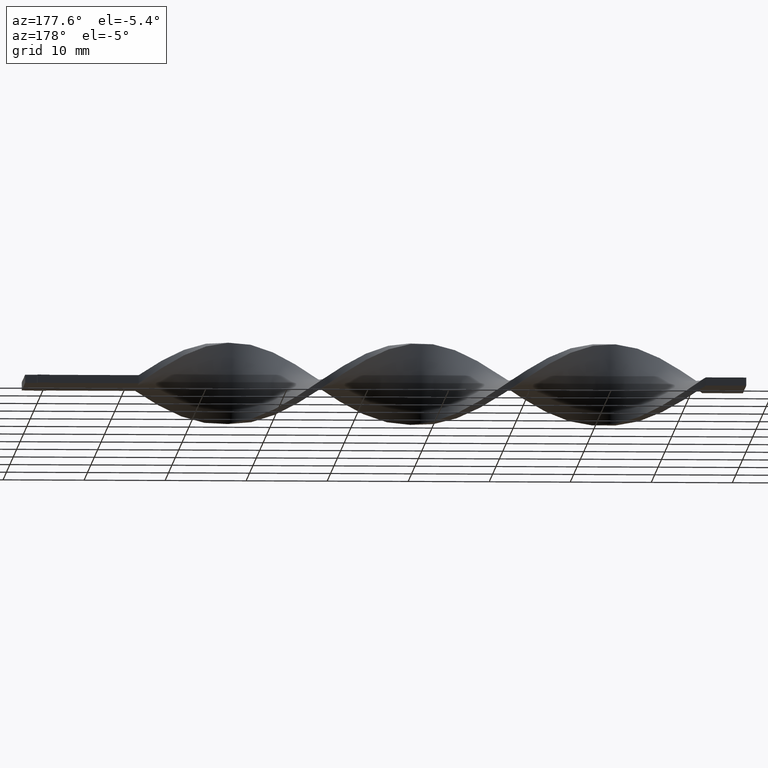
[diagram: clean part render]
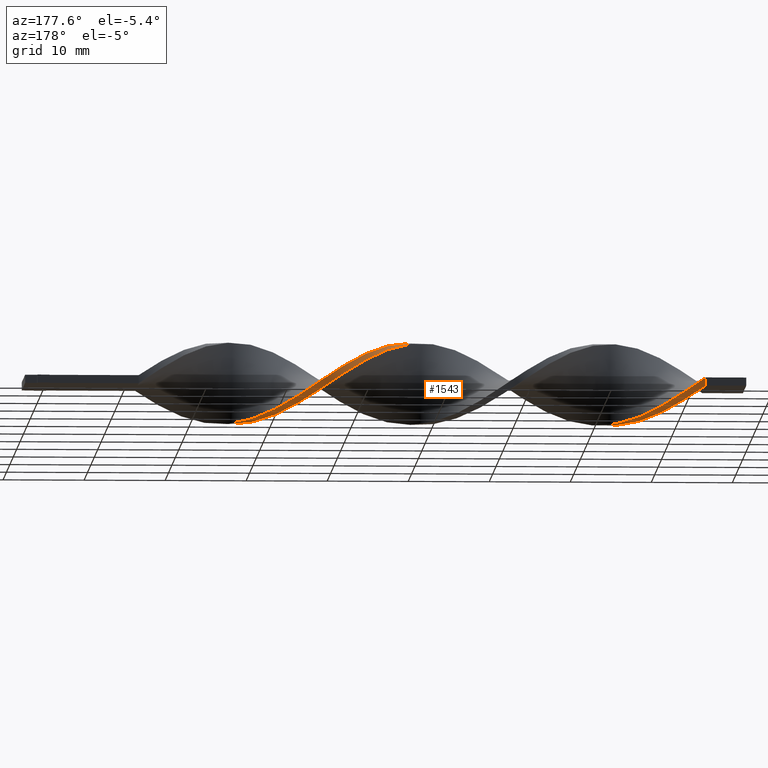
[diagram: same view with one face highlighted and labeled with its STEP entity id]
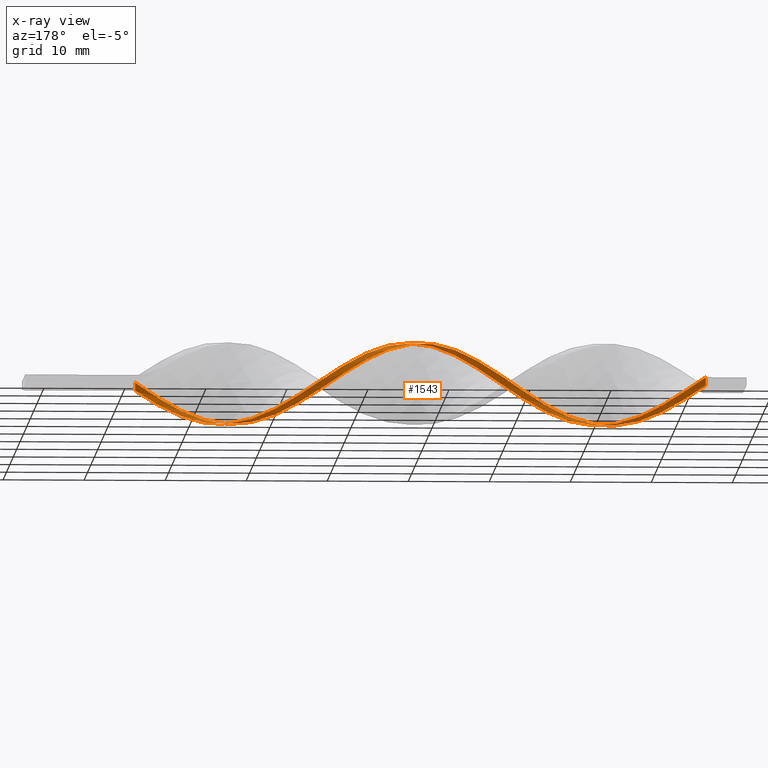
[diagram: x-ray of the same camera — body ghosted, the highlighted face saturated]
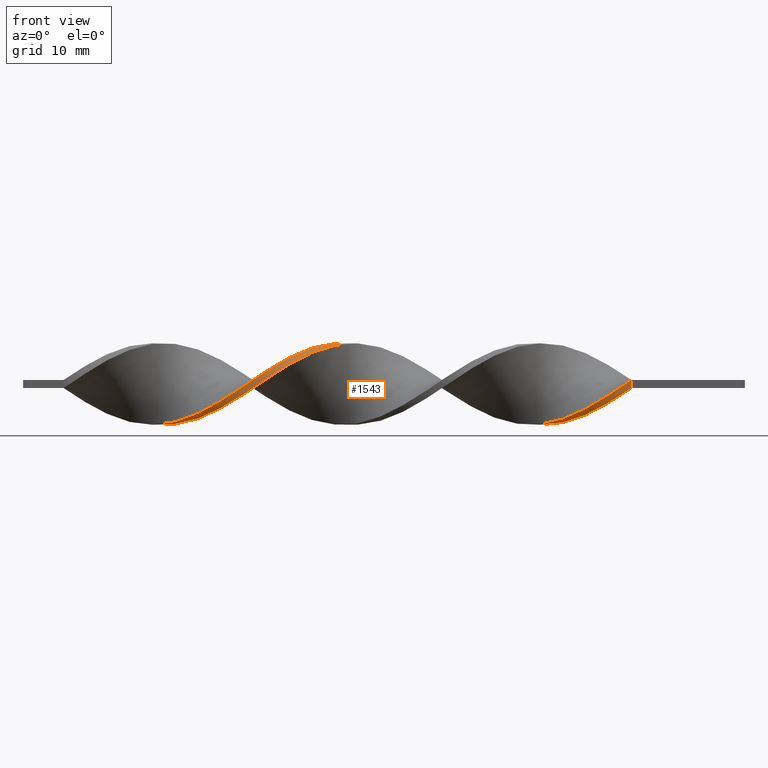
[diagram: same view with one face highlighted and labeled with its STEP entity id]
A machine part, auxiliary view. The second image highlights one B-rep face of the part: STEP entity #1543.
The next image is the same camera in x-ray: the body ghosted, the highlighted face saturated — about 2% of this face is hidden behind the body in this view.
A second angle (front view) of the same face is appended — the face is thin or edge-on in the first view.
In plain terms, the highlighted face is a freeform B-spline surface patch.
Its self-contained STEP definition (entity closure, byte-faithful):
#3 = CARTESIAN_POINT ( 'NONE',  ( -23.87179487179487580, -1.694403338218445576, -4.769828676396802081 ) ) ;
#9 = CARTESIAN_POINT ( 'NONE',  ( -27.46153846153846345, 0.7163302668880149326, -5.010902036907446622 ) ) ;
#13 = VERTEX_POINT ( 'NONE', #1213 ) ;
#15 = CARTESIAN_POINT ( 'NONE',  ( -62.46153846153845990, -4.974366919274039844, -0.7111074127247621890 ) ) ;
#29 = CARTESIAN_POINT ( 'NONE',  ( -19.38461538461538325, -3.410992411735109364, -3.689868665289524952 ) ) ;
#32 = CARTESIAN_POINT ( 'NONE',  ( -80.41025641025640880, 4.194918542244161053, -2.766343873045447488 ) ) ;
#39 = CARTESIAN_POINT ( 'NONE',  ( -63.35897435897435770, -4.888022846936949328, -1.315104909338221884 ) ) ;
#41 = CARTESIAN_POINT ( 'NONE',  ( -22.97435897435897090, -2.240532556555387966, -4.497778769905804275 ) ) ;
#43 = CARTESIAN_POINT ( 'NONE',  ( -25.66666666666666785, 0.5036723384328388731, -5.036723384328412934 ) ) ;
#51 = CARTESIAN_POINT ( 'NONE',  ( -39.12820512820512420, 4.735051254986477609, 1.682049230150812758 ) ) ;
#59 = CARTESIAN_POINT ( 'NONE',  ( -82.20512820512820440, 4.735051254986476721, -1.682049230150816088 ) ) ;
#66 = CARTESIAN_POINT ( 'NONE',  ( -28.35897435897435770, 2.240532556555381749, -4.497778769905805163 ) ) ;
#67 = VERTEX_POINT ( 'NONE', #1203 ) ;
#68 = CARTESIAN_POINT ( 'NONE',  ( -70.53846153846153300, -0.7163302668880202617, -5.010902036907447510 ) ) ;
#75 = CARTESIAN_POINT ( 'NONE',  ( -51.69230769230769340, -2.240532556555387078, 4.497778769905804275 ) ) ;
#77 = CARTESIAN_POINT ( 'NONE',  ( -54.38461538461538680, -3.716969558312885002, 3.436045048790600465 ) ) ;
#85 = CARTESIAN_POINT ( 'NONE',  ( -34.64102564102564230, 4.888022846936943111, -1.315104909338223660 ) ) ;
#97 = CARTESIAN_POINT ( 'NONE',  ( -24.76923076923076650, -1.099037838325645167, -4.903276030362606619 ) ) ;
#100 = CARTESIAN_POINT ( 'NONE',  ( -51.69230769230769340, -2.240532556555387078, 4.497778769905804275 ) ) ;
#106 = CARTESIAN_POINT ( 'NONE',  ( -78.61538461538461320, 4.074115069975897896, -2.941357917118425647 ) ) ;
#111 = CARTESIAN_POINT ( 'NONE',  ( -13.99999999999999645, -5.000000000000000888, 0.5000000000000000000 ) ) ;
#117 = CARTESIAN_POINT ( 'NONE',  ( -33.74358974358974450, 4.194918542244161053, -2.766343873045447488 ) ) ;
#120 = CARTESIAN_POINT ( 'NONE',  ( -48.10256410256410220, 1.099037838325642280, 4.903276030362606619 ) ) ;
#121 = EDGE_CURVE ( 'NONE', #13, #1347, #603, .T. ) ;
#122 = EDGE_LOOP ( 'NONE', ( #1204, #1178, #365, #1091 ) ) ;
#124 =( BOUNDED_SURFACE ( )  B_SPLINE_SURFACE ( 1, 2, ( 
 ( #816, #202, #1309, #936, #456, #1177, #1051, #1412, #1554, #1284, #1199, #945, #184, #927, #571, #1302, #66, #288, #174, #192, #696, #914, #1289, #85, #786, #1538, #562, #1169, #51, #294, #180, #670, #431, #919, #1191, #1417, #303, #799, #1297, #678, #1545, #438, #75, #1423, #448, #126, #1588, #377, #1356, #862, #495, #1617, #711, #608, #956, #615, #828, #739, #503, #1340, #488, #1112, #855, #1228, #622, #1322, #1349, #249, #467, #348, #1482, #1119, #106, #721, #134, #209, #986, #1443, #591 ),
 ( #338, #836, #1609, #703, #1243, #1209, #1472, #368, #479, #1218, #1106, #599, #97, #1082, #231, #966, #1453, #1599, #1574, #1463, #1329, #220, #117, #1095, #359, #845, #978, #732, #240, #1236, #755, #514, #159, #266, #146, #1269, #631, #1156, #1129, #760, #1142, #1495, #407, #402, #273, #1370, #532, #870, #1362, #1013, #1004, #999, #392, #165, #15, #39, #1255, #1503, #279, #1263, #1510, #152, #1388, #767, #1395, #995, #636, #892, #649, #256, #1487, #384, #877, #1150, #32, #774, #746, #509, #396 ) ),
 .UNSPECIFIED., .F., .F., .F. ) 
 B_SPLINE_SURFACE_WITH_KNOTS ( ( 2, 2 ),
 ( 3, 2, 2, 2, 2, 2, 2, 2, 2, 2, 2, 2, 2, 2, 2, 2, 2, 2, 2, 2, 2, 2, 2, 2, 2, 2, 2, 2, 2, 2, 2, 2, 2, 2, 2, 2, 2, 2, 2, 3 ),
 ( 0.000000000000000000, 1.000000000000000000 ),
 ( 0.000000000000000000, 0.01923076923076923184, 0.03846153846153846367, 0.05769230769230769551, 0.07692307692307692735, 0.09615384615384615918, 0.1153846153846153910, 0.1346153846153846090, 0.1538461538461538547, 0.1730769230769230727, 0.1923076923076923184, 0.2115384615384615363, 0.2307692307692307820, 0.2500000000000000000, 0.2692307692307692180, 0.2884615384615384359, 0.3076923076923077094, 0.3269230769230769273, 0.3461538461538461453, 0.3653846153846153633, 0.3846153846153846367, 0.4038461538461538547, 0.4230769230769230727, 0.4423076923076922906, 0.4615384615384615641, 0.4807692307692307820, 0.5000000000000000000, 0.5192307692307692735, 0.5384615384615384359, 0.5576923076923077094, 0.5769230769230768718, 0.5961538461538461453, 0.6153846153846154188, 0.6346153846153845812, 0.6538461538461538547, 0.6730769230769231282, 0.6923076923076922906, 0.7115384615384615641, 0.7307692307692307265, 0.7500000000000000000 ),
 .UNSPECIFIED. ) 
 GEOMETRIC_REPRESENTATION_ITEM ( )  RATIONAL_B_SPLINE_SURFACE ( (
 ( 1.000000000000000000, 0.9927088740980539727, 1.000000000000000000, 0.9927088740980539727, 1.000000000000000000, 0.9927088740980539727, 1.000000000000000000, 0.9927088740980539727, 1.000000000000000000, 0.9927088740980539727, 1.000000000000000000, 0.9927088740980539727, 1.000000000000000000, 0.9927088740980539727, 1.000000000000000000, 0.9927088740980539727, 1.000000000000000000, 0.9927088740980539727, 1.000000000000000000, 0.9927088740980539727, 1.000000000000000000, 0.9927088740980539727, 1.000000000000000000, 0.9927088740980539727, 1.000000000000000000, 0.9927088740980539727, 1.000000000000000000, 0.9927088740980539727, 1.000000000000000000, 0.9927088740980539727, 1.000000000000000000, 0.9927088740980539727, 1.000000000000000000, 0.9927088740980539727, 1.000000000000000000, 0.9927088740980539727, 1.000000000000000000, 0.9927088740980539727, 1.000000000000000000, 0.9927088740980539727, 1.000000000000000000, 0.9927088740980539727, 1.000000000000000000, 0.9927088740980539727, 1.000000000000000000, 0.9927088740980539727, 1.000000000000000000, 0.9927088740980539727, 1.000000000000000000, 0.9927088740980539727, 1.000000000000000000, 0.9927088740980539727, 1.000000000000000000, 0.9927088740980539727, 1.000000000000000000, 0.9927088740980539727, 1.000000000000000000, 0.9927088740980539727, 1.000000000000000000, 0.9927088740980539727, 1.000000000000000000, 0.9927088740980539727, 1.000000000000000000, 0.9927088740980539727, 1.000000000000000000, 0.9927088740980539727, 1.000000000000000000, 0.9927088740980539727, 1.000000000000000000, 0.9927088740980539727, 1.000000000000000000, 0.9927088740980539727, 1.000000000000000000, 0.9927088740980539727, 1.000000000000000000, 0.9927088740980539727, 1.000000000000000000, 0.9927088740980539727, 1.000000000000000000),
 ( 1.000000000000000000, 0.9927088740980539727, 1.000000000000000000, 0.9927088740980539727, 1.000000000000000000, 0.9927088740980539727, 1.000000000000000000, 0.9927088740980539727, 1.000000000000000000, 0.9927088740980539727, 1.000000000000000000, 0.9927088740980539727, 1.000000000000000000, 0.9927088740980539727, 1.000000000000000000, 0.9927088740980539727, 1.000000000000000000, 0.9927088740980539727, 1.000000000000000000, 0.9927088740980539727, 1.000000000000000000, 0.9927088740980539727, 1.000000000000000000, 0.9927088740980539727, 1.000000000000000000, 0.9927088740980539727, 1.000000000000000000, 0.9927088740980539727, 1.000000000000000000, 0.9927088740980539727, 1.000000000000000000, 0.9927088740980539727, 1.000000000000000000, 0.9927088740980539727, 1.000000000000000000, 0.9927088740980539727, 1.000000000000000000, 0.9927088740980539727, 1.000000000000000000, 0.9927088740980539727, 1.000000000000000000, 0.9927088740980539727, 1.000000000000000000, 0.9927088740980539727, 1.000000000000000000, 0.9927088740980539727, 1.000000000000000000, 0.9927088740980539727, 1.000000000000000000, 0.9927088740980539727, 1.000000000000000000, 0.9927088740980539727, 1.000000000000000000, 0.9927088740980539727, 1.000000000000000000, 0.9927088740980539727, 1.000000000000000000, 0.9927088740980539727, 1.000000000000000000, 0.9927088740980539727, 1.000000000000000000, 0.9927088740980539727, 1.000000000000000000, 0.9927088740980539727, 1.000000000000000000, 0.9927088740980539727, 1.000000000000000000, 0.9927088740980539727, 1.000000000000000000, 0.9927088740980539727, 1.000000000000000000, 0.9927088740980539727, 1.000000000000000000, 0.9927088740980539727, 1.000000000000000000, 0.9927088740980539727, 1.000000000000000000, 0.9927088740980539727, 1.000000000000000000) ) ) 
 REPRESENTATION_ITEM ( '' )  SURFACE ( )  );
#126 = CARTESIAN_POINT ( 'NONE',  ( -54.38461538461538680, -3.716969558312885002, 3.436045048790600465 ) ) ;
#129 = CARTESIAN_POINT ( 'NONE',  ( -40.92307692307691980, 4.659641714287929837, 1.880887847392236800 ) ) ;
#134 = CARTESIAN_POINT ( 'NONE',  ( -80.41025641025640880, 4.659641714287928949, -1.880887847392237688 ) ) ;
#137 = CARTESIAN_POINT ( 'NONE',  ( -38.23076923076922640, 5.060710991611125920, 0.1071099161113012732 ) ) ;
#141 = CARTESIAN_POINT ( 'NONE',  ( -31.05128205128205465, 2.962961240565973320, -4.104038128678484831 ) ) ;
#146 = CARTESIAN_POINT ( 'NONE',  ( -44.51282051282051100, 3.251815666602604349, 3.830886956102702356 ) ) ;
#152 = CARTESIAN_POINT ( 'NONE',  ( -68.74358974358973740, -2.786661774892329912, -4.225728863414808245 ) ) ;
#159 = CARTESIAN_POINT ( 'NONE',  ( -42.71794871794872250, 4.074115069975900560, 2.941357917118423426 ) ) ;
#165 = CARTESIAN_POINT ( 'NONE',  ( -61.56410256410256920, -5.060710991611132137, -0.1071099161113024806 ) ) ;
#166 = CARTESIAN_POINT ( 'NONE',  ( -64.25641025641024839, -4.659641714287935166, -1.880887847392236800 ) ) ;
#168 = CARTESIAN_POINT ( 'NONE',  ( -15.79487179487179205, -4.735051254986482050, -1.682049230150814312 ) ) ;
#174 = CARTESIAN_POINT ( 'NONE',  ( -30.15384615384615330, 3.251815666602603461, -3.830886956102702356 ) ) ;
#175 = CARTESIAN_POINT ( 'NONE',  ( -23.87179487179487580, -0.7163302668880202617, -5.010902036907447510 ) ) ;
#180 = CARTESIAN_POINT ( 'NONE',  ( -40.92307692307691980, 4.194918542244161941, 2.766343873045446600 ) ) ;
#184 = CARTESIAN_POINT ( 'NONE',  ( -24.76923076923076650, -0.1063289642275912633, -5.023812710617930222 ) ) ;
#192 = CARTESIAN_POINT ( 'NONE',  ( -31.05128205128205821, 3.716969558312881450, -3.436045048790598244 ) ) ;
#194 = CARTESIAN_POINT ( 'NONE',  ( -42.71794871794872250, 3.410992411735105367, 3.689868665289524508 ) ) ;
#202 = CARTESIAN_POINT ( 'NONE',  ( -14.89743589743589602, -4.939289008388870528, -1.107109916111302717 ) ) ;
#206 = CARTESIAN_POINT ( 'NONE',  ( -56.17948717948717530, -4.431260581638920115, 2.446670785446252605 ) ) ;
#209 = CARTESIAN_POINT ( 'NONE',  ( -81.30769230769233502, 4.888022846936943111, -1.315104909338223660 ) ) ;
#213 = CARTESIAN_POINT ( 'NONE',  ( -71.43589743589743080, -0.1063289642275912633, -5.023812710617930222 ) ) ;
#220 = CARTESIAN_POINT ( 'NONE',  ( -32.84615384615384670, 3.859023582904233418, -3.275699201900567736 ) ) ;
#225 = CARTESIAN_POINT ( 'NONE',  ( -38.23076923076922640, 4.939289008388865199, 1.107109916111301162 ) ) ;
#231 = CARTESIAN_POINT ( 'NONE',  ( -26.56410256410256210, 0.1063289642275847546, -5.023812710617930222 ) ) ;
#234 = CARTESIAN_POINT ( 'NONE',  ( -47.20512820512820440, 0.7163302668880151547, 5.010902036907446622 ) ) ;
#240 = CARTESIAN_POINT ( 'NONE',  ( -39.12820512820512420, 4.974366919274035403, 0.7111074127247607457 ) ) ;
#243 = CARTESIAN_POINT ( 'NONE',  ( -72.33333333333332860, -0.5036723384328442021, -5.036723384328412934 ) ) ;
#249 = CARTESIAN_POINT ( 'NONE',  ( -74.12820512820512420, 1.694403338218440247, -4.769828676396802969 ) ) ;
#251 = CARTESIAN_POINT ( 'NONE',  ( -22.07692307692308020, -2.786661774892330357, -4.225728863414808245 ) ) ;
#256 = CARTESIAN_POINT ( 'NONE',  ( -75.92307692307693401, 1.894702360851919565, -4.693865276989233948 ) ) ;
#258 = CARTESIAN_POINT ( 'NONE',  ( -47.20512820512820440, 1.694403338218440691, 4.769828676396802969 ) ) ;
#266 = CARTESIAN_POINT ( 'NONE',  ( -43.61538461538461320, 3.716969558312884114, 3.436045048790596024 ) ) ;
#273 = CARTESIAN_POINT ( 'NONE',  ( -53.48717948717948900, -2.428831800708951327, 4.398951702833859834 ) ) ;
#276 = CARTESIAN_POINT ( 'NONE',  ( -26.56410256410256210, 1.099037838325638727, -4.903276030362606619 ) ) ;
#279 = CARTESIAN_POINT ( 'NONE',  ( -66.05128205128204399, -4.074115069975905001, -2.941357917118423870 ) ) ;
#280 = CARTESIAN_POINT ( 'NONE',  ( -57.07692307692307310, -4.194918542244165494, 2.766343873045449708 ) ) ;
#282 = CARTESIAN_POINT ( 'NONE',  ( -18.48717948717948545, -3.859023582904239191, -3.275699201900567292 ) ) ;
#288 = CARTESIAN_POINT ( 'NONE',  ( -29.25641025641025905, 2.786661774892324583, -4.225728863414808245 ) ) ;
#294 = CARTESIAN_POINT ( 'NONE',  ( -40.02564102564102200, 4.530813501584090019, 2.256988544190324575 ) ) ;
#303 = CARTESIAN_POINT ( 'NONE',  ( -46.30769230769230660, 1.305516313869969025, 4.852383656948340729 ) ) ;
#306 = CARTESIAN_POINT ( 'NONE',  ( -32.84615384615384670, 4.431260581638914786, -2.446670785446252161 ) ) ;
#315 = FACE_OUTER_BOUND ( 'NONE', #122, .T. ) ;
#319 = CARTESIAN_POINT ( 'NONE',  ( -84.00000000000000000, 4.999999999999995559, 0.1666666666666660468 ) ) ;
#327 = CARTESIAN_POINT ( 'NONE',  ( -74.12820512820510999, 0.7163302668880149326, -5.010902036907446622 ) ) ;
#332 = CARTESIAN_POINT ( 'NONE',  ( -66.94871794871795601, -2.962961240565980425, -4.104038128678483943 ) ) ;
#338 = CARTESIAN_POINT ( 'NONE',  ( -13.99999999999999822, -5.000000000000000888, 0.5000000000000000000 ) ) ;
#341 = CARTESIAN_POINT ( 'NONE',  ( -62.46153846153845990, -4.735051254986482050, -1.682049230150814312 ) ) ;
#348 = CARTESIAN_POINT ( 'NONE',  ( -75.92307692307693401, 2.786661774892324583, -4.225728863414808245 ) ) ;
#352 = CARTESIAN_POINT ( 'NONE',  ( -41.82051282051281760, 3.859023582904234750, 3.275699201900566848 ) ) ;
#359 = CARTESIAN_POINT ( 'NONE',  ( -35.53846153846153300, 4.735051254986476721, -1.682049230150816088 ) ) ;
#362 = CARTESIAN_POINT ( 'NONE',  ( -55.28205128205128460, -4.074115069975903225, 2.941357917118426091 ) ) ;
#365 = ORIENTED_EDGE ( 'NONE', *, *, #1436, .F. ) ;
#368 = CARTESIAN_POINT ( 'NONE',  ( -20.28205128205128460, -3.716969558312888555, -3.436045048790597356 ) ) ;
#372 = CARTESIAN_POINT ( 'NONE',  ( -69.64102564102564941, -2.240532556555387966, -4.497778769905804275 ) ) ;
#377 = CARTESIAN_POINT ( 'NONE',  ( -56.17948717948717530, -4.431260581638921003, 2.446670785446252605 ) ) ;
#380 = CARTESIAN_POINT ( 'NONE',  ( -52.58974358974359120, -1.894702360851922451, 4.693865276989233948 ) ) ;
#384 = CARTESIAN_POINT ( 'NONE',  ( -77.71794871794872961, 2.962961240565973320, -4.104038128678483943 ) ) ;
#385 = CARTESIAN_POINT ( 'NONE',  ( -53.48717948717948900, -2.428831800708951327, 4.398951702833859834 ) ) ;
#392 = CARTESIAN_POINT ( 'NONE',  ( -60.66666666666666430, -5.000000000000000888, 0.5000000000000000000 ) ) ;
#396 = CARTESIAN_POINT ( 'NONE',  ( -84.00000000000000000, 4.999999999999995559, -0.5000000000000006661 ) ) ;
#402 = CARTESIAN_POINT ( 'NONE',  ( -52.58974358974358410, -1.894702360851922229, 4.693865276989233948 ) ) ;
#407 = CARTESIAN_POINT ( 'NONE',  ( -51.69230769230769340, -1.305516313869972134, 4.852383656948340729 ) ) ;
#408 = CARTESIAN_POINT ( 'NONE',  ( -45.41025641025640880, 2.786661774892327248, 4.225728863414806469 ) ) ;
#410 = CARTESIAN_POINT ( 'NONE',  ( -31.94871794871794535, 4.074115069975897896, -2.941357917118425647 ) ) ;
#416 = CARTESIAN_POINT ( 'NONE',  ( -35.53846153846153300, 4.735051254986476721, -1.682049230150816088 ) ) ;
#424 = CARTESIAN_POINT ( 'NONE',  ( -83.10256410256410220, 4.939289008388865199, -1.107109916111304937 ) ) ;
#431 = CARTESIAN_POINT ( 'NONE',  ( -42.71794871794872250, 3.410992411735105367, 3.689868665289524508 ) ) ;
#433 = CARTESIAN_POINT ( 'NONE',  ( -20.28205128205128460, -2.962961240565980425, -4.104038128678483943 ) ) ;
#438 = CARTESIAN_POINT ( 'NONE',  ( -50.79487179487178850, -1.694403338218443578, 4.769828676396803857 ) ) ;
#442 = CARTESIAN_POINT ( 'NONE',  ( -50.79487179487178850, -1.694403338218443356, 4.769828676396803857 ) ) ;
#448 = CARTESIAN_POINT ( 'NONE',  ( -53.48717948717948900, -3.251815666602607457, 3.830886956102703689 ) ) ;
#452 = CARTESIAN_POINT ( 'NONE',  ( -81.30769230769232081, 4.888022846936943111, -1.315104909338223660 ) ) ;
#456 = CARTESIAN_POINT ( 'NONE',  ( -17.58974358974358765, -4.194918542244167270, -2.766343873045446600 ) ) ;
#460 = CARTESIAN_POINT ( 'NONE',  ( -60.66666666666666430, -5.000000000000000888, -0.5000000000000000000 ) ) ;
#467 = CARTESIAN_POINT ( 'NONE',  ( -75.02564102564102200, 2.240532556555381749, -4.497778769905805163 ) ) ;
#471 = VERTEX_POINT ( 'NONE', #1430 ) ;
#473 = CARTESIAN_POINT ( 'NONE',  ( -64.25641025641024839, -4.194918542244167270, -2.766343873045446600 ) ) ;
#479 = CARTESIAN_POINT ( 'NONE',  ( -21.17948717948717885, -3.251815666602609234, -3.830886956102702356 ) ) ;
#482 = CARTESIAN_POINT ( 'NONE',  ( -59.76923076923076650, -5.060710991611131249, 0.1071099161113052839 ) ) ;
#488 = CARTESIAN_POINT ( 'NONE',  ( -67.84615384615385381, -2.428831800708953104, -4.398951702833858945 ) ) ;
#492 = CARTESIAN_POINT ( 'NONE',  ( -66.94871794871795601, -3.716969558312888555, -3.436045048790597356 ) ) ;
#495 = CARTESIAN_POINT ( 'NONE',  ( -58.87179487179486870, -4.974366919274039844, 0.7111074127247669630 ) ) ;
#498 = CARTESIAN_POINT ( 'NONE',  ( -46.30769230769230660, 2.240532556555383970, 4.497778769905804275 ) ) ;
#503 = CARTESIAN_POINT ( 'NONE',  ( -66.05128205128204399, -3.410992411735109364, -3.689868665289524952 ) ) ;
#505 = CARTESIAN_POINT ( 'NONE',  ( -61.56410256410256920, -5.060710991611131249, -0.1071099161113024806 ) ) ;
#509 = CARTESIAN_POINT ( 'NONE',  ( -83.10256410256410220, 4.939289008388865199, -1.107109916111304715 ) ) ;
#510 = CARTESIAN_POINT ( 'NONE',  ( -31.94871794871794535, 3.410992411735102703, -3.689868665289526284 ) ) ;
#514 = CARTESIAN_POINT ( 'NONE',  ( -41.82051282051281760, 4.431260581638917451, 2.446670785446250829 ) ) ;
#529 = CARTESIAN_POINT ( 'NONE',  ( -24.76923076923076650, -0.1063289642275912633, -5.023812710617930222 ) ) ;
#532 = CARTESIAN_POINT ( 'NONE',  ( -55.28205128205128460, -3.410992411735107144, 3.689868665289526728 ) ) ;
#541 = CARTESIAN_POINT ( 'NONE',  ( -36.43589743589743790, 4.939289008388865199, -1.107109916111304937 ) ) ;
#553 = CARTESIAN_POINT ( 'NONE',  ( -75.92307692307691980, 1.894702360851919787, -4.693865276989233948 ) ) ;
#562 = CARTESIAN_POINT ( 'NONE',  ( -37.33333333333332860, 4.999999999999995559, 0.4999999999999993339 ) ) ;
#565 = CARTESIAN_POINT ( 'NONE',  ( -78.61538461538461320, 4.074115069975897896, -2.941357917118425647 ) ) ;
#571 = CARTESIAN_POINT ( 'NONE',  ( -26.56410256410256210, 1.099037838325638727, -4.903276030362606619 ) ) ;
#574 = CARTESIAN_POINT ( 'NONE',  ( -39.12820512820512420, 4.735051254986477609, 1.682049230150812758 ) ) ;
#580 = CARTESIAN_POINT ( 'NONE',  ( -77.71794871794874382, 2.962961240565973320, -4.104038128678484831 ) ) ;
#584 = CARTESIAN_POINT ( 'NONE',  ( -75.02564102564102200, 2.240532556555381749, -4.497778769905805163 ) ) ;
#591 = CARTESIAN_POINT ( 'NONE',  ( -84.00000000000000000, 4.999999999999995559, 0.4999999999999993339 ) ) ;
#594 = CARTESIAN_POINT ( 'NONE',  ( -61.56410256410256920, -4.939289008388870528, -1.107109916111302717 ) ) ;
#599 = CARTESIAN_POINT ( 'NONE',  ( -23.87179487179487580, -1.694403338218445576, -4.769828676396802081 ) ) ;
#602 = CARTESIAN_POINT ( 'NONE',  ( -40.02564102564102200, 4.530813501584090019, 2.256988544190324575 ) ) ;
#603 = LINE ( 'NONE', #940, #1467 ) ;
#608 = CARTESIAN_POINT ( 'NONE',  ( -61.56410256410256920, -4.939289008388870528, -1.107109916111302717 ) ) ;
#610 = CARTESIAN_POINT ( 'NONE',  ( -39.12820512820512420, 4.974366919274035403, 0.7111074127247607457 ) ) ;
#615 = CARTESIAN_POINT ( 'NONE',  ( -63.35897435897435770, -4.530813501584094460, -2.256988544190325907 ) ) ;
#618 = CARTESIAN_POINT ( 'NONE',  ( -32.84615384615384670, 3.859023582904232974, -3.275699201900567292 ) ) ;
#622 = CARTESIAN_POINT ( 'NONE',  ( -71.43589743589743080, -0.1063289642275912633, -5.023812710617930222 ) ) ;
#626 =( BOUNDED_CURVE ( )  B_SPLINE_CURVE ( 2, ( #111, #1469, #742, #733, #1238, #1525, #1358, #907, #991, #251, #41, #3, #1252, #996, #1131, #9, #1159, #725, #1483, #141, #510, #618, #1402, #1364, #416, #541, #1124, #137, #610, #633, #129, #1230, #1001, #1497, #1611, #408, #498, #258, #120, #1109, #899, #1028, #1397, #380, #385, #751, #1116, #1278, #280, #863, #777, #627, #1245, #505, #1605, #1489, #166, #656, #871, #492, #981, #1476, #372, #858, #1352, #243, #792, #327, #1073, #553, #1183, #580, #661, #1431, #1565, #1036, #59, #424, #805 ),
 .UNSPECIFIED., .F., .T. ) 
 B_SPLINE_CURVE_WITH_KNOTS ( ( 3, 2, 2, 2, 2, 2, 2, 2, 2, 2, 2, 2, 2, 2, 2, 2, 2, 2, 2, 2, 2, 2, 2, 2, 2, 2, 2, 2, 2, 2, 2, 2, 2, 2, 2, 2, 2, 2, 2, 3 ),
 ( 0.000000000000000000, 0.01923076923076923184, 0.03846153846153846367, 0.05769230769230768857, 0.07692307692307692735, 0.09615384615384615918, 0.1153846153846153771, 0.1346153846153846090, 0.1538461538461538547, 0.1730769230769230449, 0.1923076923076923184, 0.2115384615384615363, 0.2307692307692307543, 0.2500000000000000000, 0.2692307692307692180, 0.2884615384615384359, 0.3076923076923077094, 0.3269230769230769273, 0.3461538461538460898, 0.3653846153846153633, 0.3846153846153846367, 0.4038461538461539102, 0.4230769230769230727, 0.4423076923076922906, 0.4615384615384615086, 0.4807692307692307820, 0.5000000000000000000, 0.5192307692307692735, 0.5384615384615384359, 0.5576923076923077094, 0.5769230769230768718, 0.5961538461538461453, 0.6153846153846154188, 0.6346153846153845812, 0.6538461538461538547, 0.6730769230769230171, 0.6923076923076921796, 0.7115384615384615641, 0.7307692307692307265, 0.7500000000000000000 ),
 .UNSPECIFIED. ) 
 CURVE ( )  GEOMETRIC_REPRESENTATION_ITEM ( )  RATIONAL_B_SPLINE_CURVE ( ( 1.000000000000000000, 0.9927088740980539727, 1.000000000000000000, 0.9927088740980539727, 1.000000000000000000, 0.9927088740980539727, 1.000000000000000000, 0.9927088740980539727, 1.000000000000000000, 0.9927088740980539727, 1.000000000000000000, 0.9927088740980539727, 1.000000000000000000, 0.9927088740980539727, 1.000000000000000000, 0.9927088740980539727, 1.000000000000000000, 0.9927088740980539727, 1.000000000000000000, 0.9927088740980539727, 1.000000000000000000, 0.9927088740980539727, 1.000000000000000000, 0.9927088740980539727, 1.000000000000000000, 0.9927088740980539727, 1.000000000000000000, 0.9927088740980539727, 1.000000000000000000, 0.9927088740980539727, 1.000000000000000000, 0.9927088740980539727, 1.000000000000000000, 0.9927088740980539727, 1.000000000000000000, 0.9927088740980539727, 1.000000000000000000, 0.9927088740980539727, 1.000000000000000000, 0.9927088740980539727, 1.000000000000000000, 0.9927088740980539727, 1.000000000000000000, 0.9927088740980539727, 1.000000000000000000, 0.9927088740980539727, 1.000000000000000000, 0.9927088740980539727, 1.000000000000000000, 0.9927088740980539727, 1.000000000000000000, 0.9927088740980539727, 1.000000000000000000, 0.9927088740980539727, 1.000000000000000000, 0.9927088740980539727, 1.000000000000000000, 0.9927088740980539727, 1.000000000000000000, 0.9927088740980539727, 1.000000000000000000, 0.9927088740980539727, 1.000000000000000000, 0.9927088740980539727, 1.000000000000000000, 0.9927088740980539727, 1.000000000000000000, 0.9927088740980539727, 1.000000000000000000, 0.9927088740980539727, 1.000000000000000000, 0.9927088740980539727, 1.000000000000000000, 0.9927088740980539727, 1.000000000000000000, 0.9927088740980539727, 1.000000000000000000, 0.9927088740980539727, 1.000000000000000000 ) ) 
 REPRESENTATION_ITEM ( '' )  );
#627 = CARTESIAN_POINT ( 'NONE',  ( -59.76923076923076650, -4.939289008388870528, 1.107109916111305381 ) ) ;
#631 = CARTESIAN_POINT ( 'NONE',  ( -46.30769230769230660, 2.240532556555383970, 4.497778769905804275 ) ) ;
#633 = CARTESIAN_POINT ( 'NONE',  ( -40.02564102564102200, 4.888022846936944887, 1.315104909338220329 ) ) ;
#636 = CARTESIAN_POINT ( 'NONE',  ( -73.23076923076924061, 0.1063289642275847546, -5.023812710617930222 ) ) ;
#649 = CARTESIAN_POINT ( 'NONE',  ( -75.02564102564102200, 1.305516313869967027, -4.852383656948339841 ) ) ;
#656 = CARTESIAN_POINT ( 'NONE',  ( -65.15384615384614619, -4.431260581638921003, -2.446670785446251273 ) ) ;
#661 = CARTESIAN_POINT ( 'NONE',  ( -78.61538461538461320, 3.410992411735102703, -3.689868665289526284 ) ) ;
#670 = CARTESIAN_POINT ( 'NONE',  ( -41.82051282051281760, 3.859023582904235194, 3.275699201900567292 ) ) ;
#678 = CARTESIAN_POINT ( 'NONE',  ( -49.00000000000000711, -0.5036723384328429809, 5.036723384328412045 ) ) ;
#686 = CARTESIAN_POINT ( 'NONE',  ( -84.00000000000000000, 4.999999999999995559, -0.1666666666666673513 ) ) ;
#696 = CARTESIAN_POINT ( 'NONE',  ( -31.94871794871794535, 4.074115069975897896, -2.941357917118425647 ) ) ;
#699 = CARTESIAN_POINT ( 'NONE',  ( -58.87179487179486870, -4.974366919274039844, 0.7111074127247669630 ) ) ;
#703 = CARTESIAN_POINT ( 'NONE',  ( -16.69230769230769695, -4.888022846936949328, -1.315104909338221884 ) ) ;
#706 = CARTESIAN_POINT ( 'NONE',  ( -84.00000000000000000, 4.999999999999995559, 0.4999999999999993339 ) ) ;
#711 = CARTESIAN_POINT ( 'NONE',  ( -60.66666666666666430, -5.000000000000000888, -0.5000000000000000000 ) ) ;
#721 = CARTESIAN_POINT ( 'NONE',  ( -79.51282051282051100, 4.431260581638915674, -2.446670785446252161 ) ) ;
#725 = CARTESIAN_POINT ( 'NONE',  ( -29.25641025641025905, 1.894702360851919787, -4.693865276989233948 ) ) ;
#732 = CARTESIAN_POINT ( 'NONE',  ( -38.23076923076922640, 5.060710991611126808, 0.1071099161113012732 ) ) ;
#733 = CARTESIAN_POINT ( 'NONE',  ( -16.69230769230769340, -4.888022846936949328, -1.315104909338222106 ) ) ;
#739 = CARTESIAN_POINT ( 'NONE',  ( -65.15384615384614619, -3.859023582904239191, -3.275699201900567736 ) ) ;
#742 = CARTESIAN_POINT ( 'NONE',  ( -15.79487179487179205, -4.974366919274039844, -0.7111074127247621890 ) ) ;
#746 = CARTESIAN_POINT ( 'NONE',  ( -82.20512820512820440, 4.735051254986476721, -1.682049230150816088 ) ) ;
#751 = CARTESIAN_POINT ( 'NONE',  ( -54.38461538461538680, -2.962961240565975984, 4.104038128678486608 ) ) ;
#755 = CARTESIAN_POINT ( 'NONE',  ( -40.92307692307691980, 4.659641714287929837, 1.880887847392236800 ) ) ;
#760 = CARTESIAN_POINT ( 'NONE',  ( -49.00000000000000711, 0.5036723384328398723, 5.036723384328412045 ) ) ;
#767 = CARTESIAN_POINT ( 'NONE',  ( -70.53846153846153300, -1.694403338218445576, -4.769828676396802081 ) ) ;
#774 = CARTESIAN_POINT ( 'NONE',  ( -81.30769230769233502, 4.530813501584088243, -2.256988544190327239 ) ) ;
#777 = CARTESIAN_POINT ( 'NONE',  ( -58.87179487179486870, -4.735051254986480274, 1.682049230150818753 ) ) ;
#786 = CARTESIAN_POINT ( 'NONE',  ( -35.53846153846153300, 4.974366919274034515, -0.7111074127247640764 ) ) ;
#787 = CARTESIAN_POINT ( 'NONE',  ( -17.58974358974358765, -4.194918542244167270, -2.766343873045446600 ) ) ;
#792 = CARTESIAN_POINT ( 'NONE',  ( -73.23076923076924061, 0.1063289642275847546, -5.023812710617930222 ) ) ;
#795 = CARTESIAN_POINT ( 'NONE',  ( -13.99999999999999645, -5.000000000000000888, -0.5000000000000000000 ) ) ;
#799 = CARTESIAN_POINT ( 'NONE',  ( -47.20512820512820440, 0.7163302668880150437, 5.010902036907447510 ) ) ;
#802 = CARTESIAN_POINT ( 'NONE',  ( -34.64102564102564230, 4.888022846936943111, -1.315104909338223660 ) ) ;
#805 = CARTESIAN_POINT ( 'NONE',  ( -84.00000000000000000, 4.999999999999995559, -0.5000000000000006661 ) ) ;
#807 = CARTESIAN_POINT ( 'NONE',  ( -84.00000000000000000, 4.999999999999995559, 0.4999999999999993339 ) ) ;
#816 = CARTESIAN_POINT ( 'NONE',  ( -13.99999999999999822, -5.000000000000000888, -0.5000000000000000000 ) ) ;
#821 = CARTESIAN_POINT ( 'NONE',  ( -46.30769230769230660, 1.305516313869969025, 4.852383656948340729 ) ) ;
#828 = CARTESIAN_POINT ( 'NONE',  ( -64.25641025641024839, -4.194918542244167270, -2.766343873045446600 ) ) ;
#832 = CARTESIAN_POINT ( 'NONE',  ( -84.00000000000000000, 4.999999999999995559, -0.5000000000000006661 ) ) ;
#836 = CARTESIAN_POINT ( 'NONE',  ( -14.89743589743589602, -5.060710991611132137, -0.1071099161113024806 ) ) ;
#838 = CARTESIAN_POINT ( 'NONE',  ( -80.41025641025640880, 4.659641714287928949, -1.880887847392237688 ) ) ;
#845 = CARTESIAN_POINT ( 'NONE',  ( -36.43589743589743790, 4.939289008388865199, -1.107109916111304715 ) ) ;
#851 = CARTESIAN_POINT ( 'NONE',  ( -72.33333333333332860, 0.5036723384328388731, -5.036723384328412934 ) ) ;
#855 = CARTESIAN_POINT ( 'NONE',  ( -69.64102564102564941, -1.305516313869973466, -4.852383656948340729 ) ) ;
#858 = CARTESIAN_POINT ( 'NONE',  ( -70.53846153846153300, -1.694403338218445576, -4.769828676396802081 ) ) ;
#862 = CARTESIAN_POINT ( 'NONE',  ( -57.97435897435897090, -4.888022846936948440, 1.315104909338224548 ) ) ;
#863 = CARTESIAN_POINT ( 'NONE',  ( -57.97435897435897090, -4.530813501584093572, 2.256988544190328572 ) ) ;
#870 = CARTESIAN_POINT ( 'NONE',  ( -56.17948717948717530, -3.859023582904238303, 3.275699201900568180 ) ) ;
#871 = CARTESIAN_POINT ( 'NONE',  ( -66.05128205128204399, -4.074115069975905001, -2.941357917118423870 ) ) ;
#877 = CARTESIAN_POINT ( 'NONE',  ( -78.61538461538461320, 3.410992411735102703, -3.689868665289526284 ) ) ;
#892 = CARTESIAN_POINT ( 'NONE',  ( -74.12820512820512420, 0.7163302668880148216, -5.010902036907447510 ) ) ;
#899 = CARTESIAN_POINT ( 'NONE',  ( -49.89743589743589069, -0.1063289642275868085, 5.023812710617930222 ) ) ;
#907 = CARTESIAN_POINT ( 'NONE',  ( -20.28205128205128460, -3.716969558312888555, -3.436045048790597356 ) ) ;
#914 = CARTESIAN_POINT ( 'NONE',  ( -32.84615384615384670, 4.431260581638915674, -2.446670785446252161 ) ) ;
#919 = CARTESIAN_POINT ( 'NONE',  ( -43.61538461538461320, 2.962961240565975984, 4.104038128678482167 ) ) ;
#922 = CARTESIAN_POINT ( 'NONE',  ( -27.46153846153846345, 1.694403338218440247, -4.769828676396802969 ) ) ;
#927 = CARTESIAN_POINT ( 'NONE',  ( -25.66666666666666785, 0.5036723384328388731, -5.036723384328412045 ) ) ;
#932 = CARTESIAN_POINT ( 'NONE',  ( -75.92307692307691980, 2.786661774892324583, -4.225728863414808245 ) ) ;
#936 = CARTESIAN_POINT ( 'NONE',  ( -16.69230769230769695, -4.530813501584094460, -2.256988544190325907 ) ) ;
#939 = CARTESIAN_POINT ( 'NONE',  ( -83.10256410256410220, 5.060710991611125920, -0.1071099161113047427 ) ) ;
#940 = CARTESIAN_POINT ( 'NONE',  ( -13.99999999999999645, -5.000000000000000888, 0.5000000000000000000 ) ) ;
#945 = CARTESIAN_POINT ( 'NONE',  ( -23.87179487179487580, -0.7163302668880203727, -5.010902036907448398 ) ) ;
#949 = CARTESIAN_POINT ( 'NONE',  ( -68.74358974358973740, -1.894702360851925560, -4.693865276989233948 ) ) ;
#956 = CARTESIAN_POINT ( 'NONE',  ( -62.46153846153845990, -4.735051254986482050, -1.682049230150814312 ) ) ;
#960 = CARTESIAN_POINT ( 'NONE',  ( -76.82051282051281760, 3.251815666602603461, -3.830886956102702356 ) ) ;
#966 = CARTESIAN_POINT ( 'NONE',  ( -27.46153846153846345, 0.7163302668880148216, -5.010902036907447510 ) ) ;
#971 = CARTESIAN_POINT ( 'NONE',  ( -73.23076923076924061, 1.099037838325638727, -4.903276030362606619 ) ) ;
#978 = CARTESIAN_POINT ( 'NONE',  ( -37.33333333333332860, 4.999999999999995559, -0.5000000000000006661 ) ) ;
#981 = CARTESIAN_POINT ( 'NONE',  ( -67.84615384615385381, -3.251815666602609234, -3.830886956102702356 ) ) ;
#984 = B_SPLINE_CURVE_WITH_KNOTS ( 'NONE', 3,
 ( #807, #319, #686, #832 ),
 .UNSPECIFIED., .F., .F.,
 ( 4, 4 ),
 ( 0.000000000000000000, 1.000000000000000000 ),
 .UNSPECIFIED. ) ;
#986 = CARTESIAN_POINT ( 'NONE',  ( -82.20512820512820440, 4.974366919274034515, -0.7111074127247640764 ) ) ;
#991 = CARTESIAN_POINT ( 'NONE',  ( -21.17948717948717885, -3.251815666602609234, -3.830886956102702356 ) ) ;
#995 = CARTESIAN_POINT ( 'NONE',  ( -72.33333333333332860, -0.5036723384328442021, -5.036723384328412045 ) ) ;
#996 = CARTESIAN_POINT ( 'NONE',  ( -25.66666666666666785, -0.5036723384328442021, -5.036723384328412934 ) ) ;
#999 = CARTESIAN_POINT ( 'NONE',  ( -59.76923076923077360, -4.939289008388870528, 1.107109916111305159 ) ) ;
#1001 = CARTESIAN_POINT ( 'NONE',  ( -42.71794871794872250, 4.074115069975900560, 2.941357917118423426 ) ) ;
#1004 = CARTESIAN_POINT ( 'NONE',  ( -58.87179487179486870, -4.735051254986480274, 1.682049230150818753 ) ) ;
#1013 = CARTESIAN_POINT ( 'NONE',  ( -57.97435897435897090, -4.530813501584093572, 2.256988544190328128 ) ) ;
#1015 = CARTESIAN_POINT ( 'NONE',  ( -35.53846153846153300, 4.974366919274034515, -0.7111074127247640764 ) ) ;
#1028 = CARTESIAN_POINT ( 'NONE',  ( -50.79487179487178850, -0.7163302668880178192, 5.010902036907447510 ) ) ;
#1032 = CARTESIAN_POINT ( 'NONE',  ( -30.15384615384615330, 3.251815666602603461, -3.830886956102702356 ) ) ;
#1036 = CARTESIAN_POINT ( 'NONE',  ( -81.30769230769232081, 4.530813501584088243, -2.256988544190327683 ) ) ;
#1051 = CARTESIAN_POINT ( 'NONE',  ( -19.38461538461538325, -3.410992411735109364, -3.689868665289524952 ) ) ;
#1056 = CARTESIAN_POINT ( 'NONE',  ( -43.61538461538461320, 2.962961240565975984, 4.104038128678483055 ) ) ;
#1066 = CARTESIAN_POINT ( 'NONE',  ( -69.64102564102564941, -1.305516313869973466, -4.852383656948340729 ) ) ;
#1073 = CARTESIAN_POINT ( 'NONE',  ( -75.02564102564102200, 1.305516313869967027, -4.852383656948339841 ) ) ;
#1082 = CARTESIAN_POINT ( 'NONE',  ( -25.66666666666666785, -0.5036723384328442021, -5.036723384328412045 ) ) ;
#1084 = CARTESIAN_POINT ( 'NONE',  ( -67.84615384615385381, -2.428831800708953104, -4.398951702833858945 ) ) ;
#1091 = ORIENTED_EDGE ( 'NONE', *, *, #1424, .F. ) ;
#1095 = CARTESIAN_POINT ( 'NONE',  ( -34.64102564102564230, 4.530813501584088243, -2.256988544190327239 ) ) ;
#1098 = CARTESIAN_POINT ( 'NONE',  ( -48.10256410256410220, 0.1063289642275882241, 5.023812710617930222 ) ) ;
#1106 = CARTESIAN_POINT ( 'NONE',  ( -22.97435897435897090, -2.240532556555387966, -4.497778769905804275 ) ) ;
#1109 = CARTESIAN_POINT ( 'NONE',  ( -49.00000000000000000, 0.5036723384328399833, 5.036723384328412934 ) ) ;
#1112 = CARTESIAN_POINT ( 'NONE',  ( -68.74358974358973740, -1.894702360851925560, -4.693865276989233948 ) ) ;
#1116 = CARTESIAN_POINT ( 'NONE',  ( -55.28205128205128460, -3.410992411735107144, 3.689868665289526728 ) ) ;
#1119 = CARTESIAN_POINT ( 'NONE',  ( -77.71794871794872961, 3.716969558312881450, -3.436045048790598244 ) ) ;
#1124 = CARTESIAN_POINT ( 'NONE',  ( -37.33333333333332860, 4.999999999999995559, -0.5000000000000006661 ) ) ;
#1129 = CARTESIAN_POINT ( 'NONE',  ( -48.10256410256410220, 1.099037838325642280, 4.903276030362606619 ) ) ;
#1131 = CARTESIAN_POINT ( 'NONE',  ( -26.56410256410256210, 0.1063289642275847546, -5.023812710617930222 ) ) ;
#1142 = CARTESIAN_POINT ( 'NONE',  ( -49.89743589743589069, -0.1063289642275868085, 5.023812710617930222 ) ) ;
#1150 = CARTESIAN_POINT ( 'NONE',  ( -79.51282051282051100, 3.859023582904233418, -3.275699201900567736 ) ) ;
#1152 = CARTESIAN_POINT ( 'NONE',  ( -22.97435897435897090, -1.305516313869973466, -4.852383656948340729 ) ) ;
#1156 = CARTESIAN_POINT ( 'NONE',  ( -47.20512820512820440, 1.694403338218440691, 4.769828676396802969 ) ) ;
#1159 = CARTESIAN_POINT ( 'NONE',  ( -28.35897435897435770, 1.305516313869967027, -4.852383656948339841 ) ) ;
#1161 = CARTESIAN_POINT ( 'NONE',  ( -22.07692307692308020, -1.894702360851925560, -4.693865276989233948 ) ) ;
#1169 = CARTESIAN_POINT ( 'NONE',  ( -38.23076923076922640, 4.939289008388865199, 1.107109916111301384 ) ) ;
#1173 = CARTESIAN_POINT ( 'NONE',  ( -33.74358974358974450, 4.659641714287928949, -1.880887847392237688 ) ) ;
#1177 = CARTESIAN_POINT ( 'NONE',  ( -18.48717948717948545, -3.859023582904239191, -3.275699201900567736 ) ) ;
#1178 = ORIENTED_EDGE ( 'NONE', *, *, #1511, .T. ) ;
#1183 = CARTESIAN_POINT ( 'NONE',  ( -76.82051282051281760, 2.428831800708946886, -4.398951702833858945 ) ) ;
#1187 = CARTESIAN_POINT ( 'NONE',  ( -66.05128205128204399, -3.410992411735109364, -3.689868665289524952 ) ) ;
#1191 = CARTESIAN_POINT ( 'NONE',  ( -44.51282051282051100, 2.428831800708947775, 4.398951702833858945 ) ) ;
#1194 = CARTESIAN_POINT ( 'NONE',  ( -53.48717948717948900, -3.251815666602607457, 3.830886956102703689 ) ) ;
#1199 = CARTESIAN_POINT ( 'NONE',  ( -22.97435897435897090, -1.305516313869973466, -4.852383656948340729 ) ) ;
#1202 = CARTESIAN_POINT ( 'NONE',  ( -52.58974358974359120, -2.786661774892327248, 4.225728863414810021 ) ) ;
#1203 = CARTESIAN_POINT ( 'NONE',  ( -84.00000000000000000, 4.999999999999995559, 0.4999999999999993339 ) ) ;
#1204 = ORIENTED_EDGE ( 'NONE', *, *, #121, .F. ) ;
#1209 = CARTESIAN_POINT ( 'NONE',  ( -18.48717948717948545, -4.431260581638921892, -2.446670785446251273 ) ) ;
#1212 = CARTESIAN_POINT ( 'NONE',  ( -49.89743589743589069, -1.099037838325640948, 4.903276030362608395 ) ) ;
#1213 = CARTESIAN_POINT ( 'NONE',  ( -13.99999999999999645, -5.000000000000000888, 0.5000000000000000000 ) ) ;
#1218 = CARTESIAN_POINT ( 'NONE',  ( -22.07692307692308376, -2.786661774892329912, -4.225728863414808245 ) ) ;
#1228 = CARTESIAN_POINT ( 'NONE',  ( -70.53846153846153300, -0.7163302668880203727, -5.010902036907448398 ) ) ;
#1230 = CARTESIAN_POINT ( 'NONE',  ( -41.82051282051281760, 4.431260581638916562, 2.446670785446250829 ) ) ;
#1236 = CARTESIAN_POINT ( 'NONE',  ( -40.02564102564102200, 4.888022846936944887, 1.315104909338220329 ) ) ;
#1238 = CARTESIAN_POINT ( 'NONE',  ( -17.58974358974358765, -4.659641714287935166, -1.880887847392236800 ) ) ;
#1243 = CARTESIAN_POINT ( 'NONE',  ( -17.58974358974358765, -4.659641714287935166, -1.880887847392236800 ) ) ;
#1245 = CARTESIAN_POINT ( 'NONE',  ( -60.66666666666666430, -5.000000000000000888, 0.5000000000000000000 ) ) ;
#1252 = CARTESIAN_POINT ( 'NONE',  ( -24.76923076923076650, -1.099037838325645167, -4.903276030362606619 ) ) ;
#1255 = CARTESIAN_POINT ( 'NONE',  ( -64.25641025641024839, -4.659641714287935166, -1.880887847392236800 ) ) ;
#1263 = CARTESIAN_POINT ( 'NONE',  ( -66.94871794871794179, -3.716969558312888555, -3.436045048790597356 ) ) ;
#1269 = CARTESIAN_POINT ( 'NONE',  ( -45.41025641025640880, 2.786661774892326804, 4.225728863414806469 ) ) ;
#1278 = CARTESIAN_POINT ( 'NONE',  ( -56.17948717948717530, -3.859023582904238303, 3.275699201900567736 ) ) ;
#1284 = CARTESIAN_POINT ( 'NONE',  ( -22.07692307692308376, -1.894702360851925560, -4.693865276989233948 ) ) ;
#1285 = CARTESIAN_POINT ( 'NONE',  ( -28.35897435897435770, 2.240532556555381749, -4.497778769905805163 ) ) ;
#1289 = CARTESIAN_POINT ( 'NONE',  ( -33.74358974358974450, 4.659641714287928949, -1.880887847392237688 ) ) ;
#1297 = CARTESIAN_POINT ( 'NONE',  ( -48.10256410256410220, 0.1063289642275882241, 5.023812710617930222 ) ) ;
#1299 = CARTESIAN_POINT ( 'NONE',  ( -29.25641025641025905, 2.786661774892324583, -4.225728863414808245 ) ) ;
#1302 = CARTESIAN_POINT ( 'NONE',  ( -27.46153846153846345, 1.694403338218440247, -4.769828676396802969 ) ) ;
#1305 = CARTESIAN_POINT ( 'NONE',  ( -45.41025641025640880, 1.894702360851923117, 4.693865276989232171 ) ) ;
#1309 = CARTESIAN_POINT ( 'NONE',  ( -15.79487179487179205, -4.735051254986482050, -1.682049230150814312 ) ) ;
#1316 = CARTESIAN_POINT ( 'NONE',  ( -40.92307692307691980, 4.194918542244161941, 2.766343873045446600 ) ) ;
#1322 = CARTESIAN_POINT ( 'NONE',  ( -72.33333333333332860, 0.5036723384328388731, -5.036723384328412045 ) ) ;
#1329 = CARTESIAN_POINT ( 'NONE',  ( -31.94871794871794535, 3.410992411735102703, -3.689868665289526284 ) ) ;
#1333 = CARTESIAN_POINT ( 'NONE',  ( -82.20512820512820440, 4.974366919274034515, -0.7111074127247640764 ) ) ;
#1340 = CARTESIAN_POINT ( 'NONE',  ( -66.94871794871794179, -2.962961240565979981, -4.104038128678483055 ) ) ;
#1343 = CARTESIAN_POINT ( 'NONE',  ( -57.07692307692307310, -4.659641714287933389, 1.880887847392240575 ) ) ;
#1344 = DIRECTION ( 'NONE',  ( -0.000000000000000000, -0.000000000000000000, -1.000000000000000000 ) ) ;
#1347 = VERTEX_POINT ( 'NONE', #795 ) ;
#1349 = CARTESIAN_POINT ( 'NONE',  ( -73.23076923076924061, 1.099037838325638727, -4.903276030362606619 ) ) ;
#1352 = CARTESIAN_POINT ( 'NONE',  ( -71.43589743589743080, -1.099037838325645167, -4.903276030362606619 ) ) ;
#1356 = CARTESIAN_POINT ( 'NONE',  ( -57.07692307692307310, -4.659641714287933389, 1.880887847392240575 ) ) ;
#1358 = CARTESIAN_POINT ( 'NONE',  ( -19.38461538461538325, -4.074115069975905001, -2.941357917118423870 ) ) ;
#1362 = CARTESIAN_POINT ( 'NONE',  ( -57.07692307692307310, -4.194918542244165494, 2.766343873045449708 ) ) ;
#1364 = CARTESIAN_POINT ( 'NONE',  ( -34.64102564102564230, 4.530813501584088243, -2.256988544190327683 ) ) ;
#1370 = CARTESIAN_POINT ( 'NONE',  ( -54.38461538461538680, -2.962961240565975984, 4.104038128678485720 ) ) ;
#1388 = CARTESIAN_POINT ( 'NONE',  ( -69.64102564102564941, -2.240532556555387966, -4.497778769905804275 ) ) ;
#1389 =( BOUNDED_CURVE ( )  B_SPLINE_CURVE ( 2, ( #1532, #1541, #168, #1398, #787, #282, #29, #433, #1405, #1161, #1152, #175, #529, #43, #276, #922, #1285, #1299, #1032, #1419, #410, #306, #1173, #802, #1015, #1514, #1427, #225, #574, #602, #1316, #352, #194, #1056, #1447, #1305, #821, #234, #1098, #1548, #1212, #442, #100, #1202, #1194, #77, #362, #206, #1343, #1435, #699, #482, #460, #594, #341, #1580, #473, #1592, #1187, #332, #1084, #949, #1066, #68, #213, #851, #971, #1567, #584, #932, #960, #1558, #565, #1456, #838, #452, #1333, #939, #706 ),
 .UNSPECIFIED., .F., .T. ) 
 B_SPLINE_CURVE_WITH_KNOTS ( ( 3, 2, 2, 2, 2, 2, 2, 2, 2, 2, 2, 2, 2, 2, 2, 2, 2, 2, 2, 2, 2, 2, 2, 2, 2, 2, 2, 2, 2, 2, 2, 2, 2, 2, 2, 2, 2, 2, 2, 3 ),
 ( 0.000000000000000000, 0.01923076923076923184, 0.03846153846153846367, 0.05769230769230768857, 0.07692307692307692735, 0.09615384615384615918, 0.1153846153846153771, 0.1346153846153846090, 0.1538461538461538547, 0.1730769230769230449, 0.1923076923076923184, 0.2115384615384615363, 0.2307692307692307543, 0.2500000000000000000, 0.2692307692307692180, 0.2884615384615384359, 0.3076923076923077094, 0.3269230769230769273, 0.3461538461538460898, 0.3653846153846153633, 0.3846153846153846367, 0.4038461538461539102, 0.4230769230769230727, 0.4423076923076922906, 0.4615384615384615086, 0.4807692307692307820, 0.5000000000000000000, 0.5192307692307692735, 0.5384615384615384359, 0.5576923076923077094, 0.5769230769230768718, 0.5961538461538461453, 0.6153846153846154188, 0.6346153846153845812, 0.6538461538461538547, 0.6730769230769230171, 0.6923076923076921796, 0.7115384615384615641, 0.7307692307692307265, 0.7500000000000000000 ),
 .UNSPECIFIED. ) 
 CURVE ( )  GEOMETRIC_REPRESENTATION_ITEM ( )  RATIONAL_B_SPLINE_CURVE ( ( 1.000000000000000000, 0.9927088740980539727, 1.000000000000000000, 0.9927088740980539727, 1.000000000000000000, 0.9927088740980539727, 1.000000000000000000, 0.9927088740980539727, 1.000000000000000000, 0.9927088740980539727, 1.000000000000000000, 0.9927088740980539727, 1.000000000000000000, 0.9927088740980539727, 1.000000000000000000, 0.9927088740980539727, 1.000000000000000000, 0.9927088740980539727, 1.000000000000000000, 0.9927088740980539727, 1.000000000000000000, 0.9927088740980539727, 1.000000000000000000, 0.9927088740980539727, 1.000000000000000000, 0.9927088740980539727, 1.000000000000000000, 0.9927088740980539727, 1.000000000000000000, 0.9927088740980539727, 1.000000000000000000, 0.9927088740980539727, 1.000000000000000000, 0.9927088740980539727, 1.000000000000000000, 0.9927088740980539727, 1.000000000000000000, 0.9927088740980539727, 1.000000000000000000, 0.9927088740980539727, 1.000000000000000000, 0.9927088740980539727, 1.000000000000000000, 0.9927088740980539727, 1.000000000000000000, 0.9927088740980539727, 1.000000000000000000, 0.9927088740980539727, 1.000000000000000000, 0.9927088740980539727, 1.000000000000000000, 0.9927088740980539727, 1.000000000000000000, 0.9927088740980539727, 1.000000000000000000, 0.9927088740980539727, 1.000000000000000000, 0.9927088740980539727, 1.000000000000000000, 0.9927088740980539727, 1.000000000000000000, 0.9927088740980539727, 1.000000000000000000, 0.9927088740980539727, 1.000000000000000000, 0.9927088740980539727, 1.000000000000000000, 0.9927088740980539727, 1.000000000000000000, 0.9927088740980539727, 1.000000000000000000, 0.9927088740980539727, 1.000000000000000000, 0.9927088740980539727, 1.000000000000000000, 0.9927088740980539727, 1.000000000000000000, 0.9927088740980539727, 1.000000000000000000 ) ) 
 REPRESENTATION_ITEM ( '' )  );
#1395 = CARTESIAN_POINT ( 'NONE',  ( -71.43589743589743080, -1.099037838325645167, -4.903276030362606619 ) ) ;
#1397 = CARTESIAN_POINT ( 'NONE',  ( -51.69230769230769340, -1.305516313869972134, 4.852383656948340729 ) ) ;
#1398 = CARTESIAN_POINT ( 'NONE',  ( -16.69230769230769340, -4.530813501584094460, -2.256988544190326351 ) ) ;
#1402 = CARTESIAN_POINT ( 'NONE',  ( -33.74358974358974450, 4.194918542244161053, -2.766343873045447488 ) ) ;
#1405 = CARTESIAN_POINT ( 'NONE',  ( -21.17948717948717885, -2.428831800708953104, -4.398951702833858945 ) ) ;
#1412 = CARTESIAN_POINT ( 'NONE',  ( -20.28205128205128460, -2.962961240565979981, -4.104038128678483055 ) ) ;
#1417 = CARTESIAN_POINT ( 'NONE',  ( -45.41025641025640880, 1.894702360851922895, 4.693865276989232171 ) ) ;
#1419 = CARTESIAN_POINT ( 'NONE',  ( -31.05128205128205465, 3.716969558312881894, -3.436045048790598244 ) ) ;
#1423 = CARTESIAN_POINT ( 'NONE',  ( -52.58974358974358410, -2.786661774892326804, 4.225728863414810021 ) ) ;
#1424 = EDGE_CURVE ( 'NONE', #1347, #67, #1389, .T. ) ;
#1427 = CARTESIAN_POINT ( 'NONE',  ( -37.33333333333332860, 4.999999999999995559, 0.4999999999999993339 ) ) ;
#1430 = CARTESIAN_POINT ( 'NONE',  ( -84.00000000000000000, 4.999999999999995559, -0.5000000000000006661 ) ) ;
#1431 = CARTESIAN_POINT ( 'NONE',  ( -79.51282051282051100, 3.859023582904232974, -3.275699201900567292 ) ) ;
#1435 = CARTESIAN_POINT ( 'NONE',  ( -57.97435897435897090, -4.888022846936948440, 1.315104909338224326 ) ) ;
#1436 = EDGE_CURVE ( 'NONE', #67, #471, #984, .T. ) ;
#1443 = CARTESIAN_POINT ( 'NONE',  ( -83.10256410256410220, 5.060710991611126808, -0.1071099161113047288 ) ) ;
#1447 = CARTESIAN_POINT ( 'NONE',  ( -44.51282051282051100, 2.428831800708947775, 4.398951702833858945 ) ) ;
#1453 = CARTESIAN_POINT ( 'NONE',  ( -28.35897435897435770, 1.305516313869967027, -4.852383656948339841 ) ) ;
#1456 = CARTESIAN_POINT ( 'NONE',  ( -79.51282051282051100, 4.431260581638914786, -2.446670785446252161 ) ) ;
#1463 = CARTESIAN_POINT ( 'NONE',  ( -31.05128205128205821, 2.962961240565973320, -4.104038128678483943 ) ) ;
#1467 = VECTOR ( 'NONE', #1344, 1000.000000000000000 ) ;
#1469 = CARTESIAN_POINT ( 'NONE',  ( -14.89743589743589602, -5.060710991611131249, -0.1071099161113024806 ) ) ;
#1472 = CARTESIAN_POINT ( 'NONE',  ( -19.38461538461538325, -4.074115069975905001, -2.941357917118423870 ) ) ;
#1476 = CARTESIAN_POINT ( 'NONE',  ( -68.74358974358973740, -2.786661774892330357, -4.225728863414808245 ) ) ;
#1482 = CARTESIAN_POINT ( 'NONE',  ( -76.82051282051281760, 3.251815666602603461, -3.830886956102702356 ) ) ;
#1483 = CARTESIAN_POINT ( 'NONE',  ( -30.15384615384615330, 2.428831800708946886, -4.398951702833858945 ) ) ;
#1487 = CARTESIAN_POINT ( 'NONE',  ( -76.82051282051281760, 2.428831800708946886, -4.398951702833858945 ) ) ;
#1489 = CARTESIAN_POINT ( 'NONE',  ( -63.35897435897436480, -4.888022846936949328, -1.315104909338222106 ) ) ;
#1495 = CARTESIAN_POINT ( 'NONE',  ( -50.79487179487178850, -0.7163302668880178192, 5.010902036907448398 ) ) ;
#1497 = CARTESIAN_POINT ( 'NONE',  ( -43.61538461538461320, 3.716969558312884114, 3.436045048790596024 ) ) ;
#1503 = CARTESIAN_POINT ( 'NONE',  ( -65.15384615384614619, -4.431260581638921892, -2.446670785446251273 ) ) ;
#1510 = CARTESIAN_POINT ( 'NONE',  ( -67.84615384615385381, -3.251815666602609234, -3.830886956102702356 ) ) ;
#1511 = EDGE_CURVE ( 'NONE', #13, #471, #626, .T. ) ;
#1514 = CARTESIAN_POINT ( 'NONE',  ( -36.43589743589743790, 5.060710991611125920, -0.1071099161113047427 ) ) ;
#1525 = CARTESIAN_POINT ( 'NONE',  ( -18.48717948717948545, -4.431260581638921003, -2.446670785446251273 ) ) ;
#1532 = CARTESIAN_POINT ( 'NONE',  ( -13.99999999999999645, -5.000000000000000888, -0.5000000000000000000 ) ) ;
#1538 = CARTESIAN_POINT ( 'NONE',  ( -36.43589743589743790, 5.060710991611126808, -0.1071099161113047288 ) ) ;
#1541 = CARTESIAN_POINT ( 'NONE',  ( -14.89743589743589602, -4.939289008388870528, -1.107109916111302717 ) ) ;
#1543 = ADVANCED_FACE ( 'NONE', ( #315 ), #124, .T. ) ;
#1545 = CARTESIAN_POINT ( 'NONE',  ( -49.89743589743589069, -1.099037838325640948, 4.903276030362608395 ) ) ;
#1548 = CARTESIAN_POINT ( 'NONE',  ( -49.00000000000000000, -0.5036723384328429809, 5.036723384328412934 ) ) ;
#1554 = CARTESIAN_POINT ( 'NONE',  ( -21.17948717948717885, -2.428831800708953104, -4.398951702833858945 ) ) ;
#1558 = CARTESIAN_POINT ( 'NONE',  ( -77.71794871794874382, 3.716969558312881894, -3.436045048790598244 ) ) ;
#1565 = CARTESIAN_POINT ( 'NONE',  ( -80.41025641025640880, 4.194918542244161053, -2.766343873045447488 ) ) ;
#1567 = CARTESIAN_POINT ( 'NONE',  ( -74.12820512820510999, 1.694403338218440247, -4.769828676396802969 ) ) ;
#1574 = CARTESIAN_POINT ( 'NONE',  ( -30.15384615384615330, 2.428831800708946886, -4.398951702833858945 ) ) ;
#1580 = CARTESIAN_POINT ( 'NONE',  ( -63.35897435897436480, -4.530813501584094460, -2.256988544190326351 ) ) ;
#1588 = CARTESIAN_POINT ( 'NONE',  ( -55.28205128205128460, -4.074115069975903225, 2.941357917118426091 ) ) ;
#1592 = CARTESIAN_POINT ( 'NONE',  ( -65.15384615384614619, -3.859023582904239191, -3.275699201900567292 ) ) ;
#1599 = CARTESIAN_POINT ( 'NONE',  ( -29.25641025641025905, 1.894702360851919565, -4.693865276989233948 ) ) ;
#1605 = CARTESIAN_POINT ( 'NONE',  ( -62.46153846153845990, -4.974366919274039844, -0.7111074127247621890 ) ) ;
#1609 = CARTESIAN_POINT ( 'NONE',  ( -15.79487179487179205, -4.974366919274039844, -0.7111074127247621890 ) ) ;
#1611 = CARTESIAN_POINT ( 'NONE',  ( -44.51282051282051100, 3.251815666602604349, 3.830886956102702356 ) ) ;
#1617 = CARTESIAN_POINT ( 'NONE',  ( -59.76923076923077360, -5.060710991611132137, 0.1071099161113052839 ) ) ;